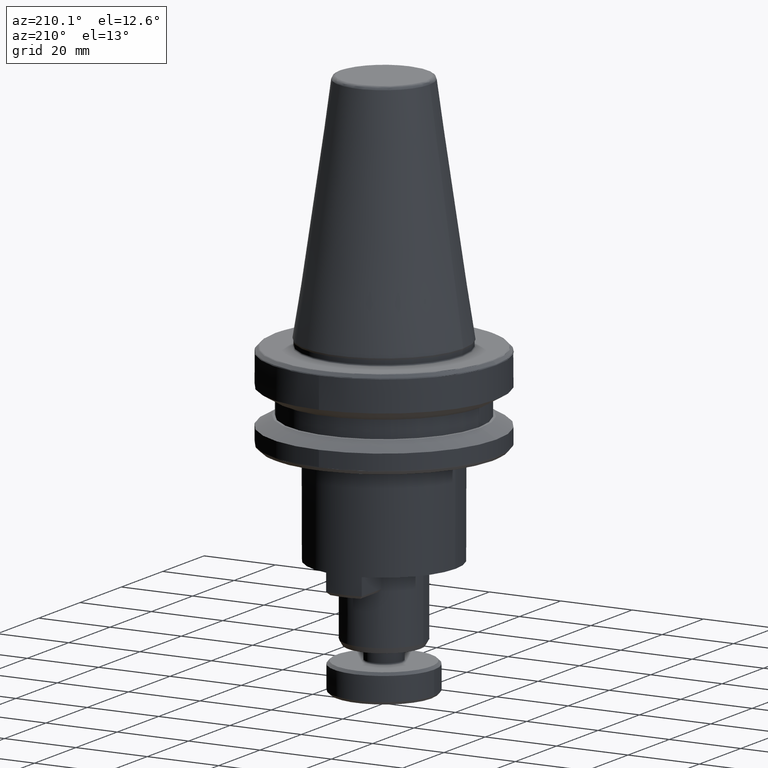
[diagram: clean part render]
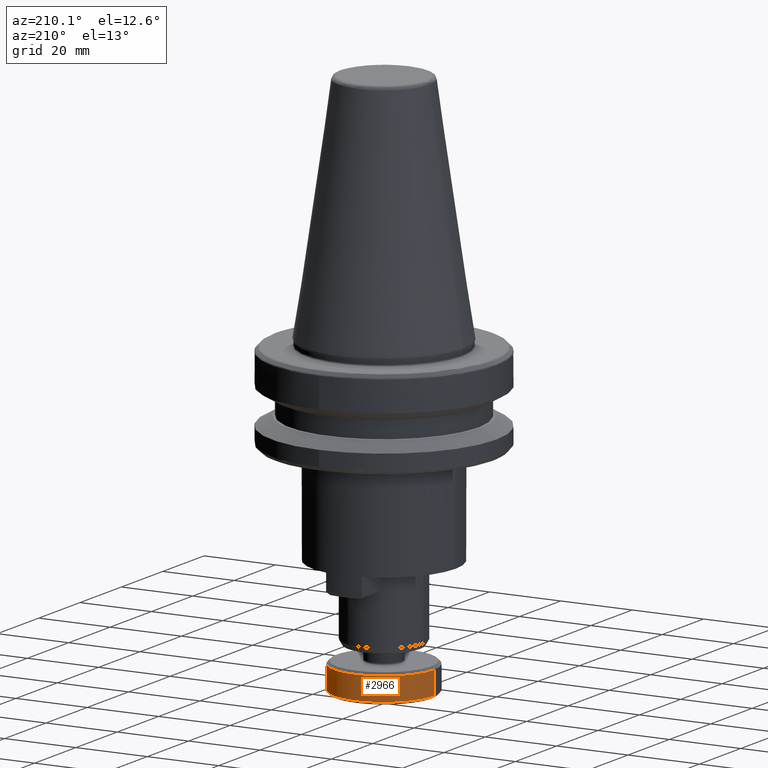
[diagram: same view with one face highlighted and labeled with its STEP entity id]
A machine part, auxiliary view. The second image highlights one B-rep face of the part: STEP entity #2966.
In plain terms, the highlighted cylindrical surface (partial cylindrical patch) has radius 14 mm, axis along (0, 0, 1).
Its self-contained STEP definition (entity closure, byte-faithful):
#139 = AXIS2_PLACEMENT_3D ( 'NONE', #1551, #3184, #1285 ) ;
#295 = EDGE_CURVE ( 'NONE', #393, #1738, #2063, .T. ) ;
#374 = AXIS2_PLACEMENT_3D ( 'NONE', #724, #2640, #2354 ) ;
#388 = ORIENTED_EDGE ( 'NONE', *, *, #2888, .T. ) ;
#393 = VERTEX_POINT ( 'NONE', #1756 ) ;
#452 = ORIENTED_EDGE ( 'NONE', *, *, #3065, .F. ) ;
#657 = CIRCLE ( 'NONE', #139, 14.00000000000000000 ) ;
#724 = CARTESIAN_POINT ( 'NONE',  ( 0.0000000000000000000, 0.0000000000000000000, -100.1942375252151200 ) ) ;
#815 = CARTESIAN_POINT ( 'NONE',  ( -14.00000000000000000, 1.714505518806294600E-015, -100.1942375252151200 ) ) ;
#890 = DIRECTION ( 'NONE',  ( -0.0000000000000000000, -0.0000000000000000000, -1.000000000000000000 ) ) ;
#1079 = VECTOR ( 'NONE', #1614, 1000.000000000000000 ) ;
#1124 = CARTESIAN_POINT ( 'NONE',  ( 0.0000000000000000000, 13.99999999999998600, -100.1942375252151200 ) ) ;
#1170 = CIRCLE ( 'NONE', #1779, 14.00000000000000000 ) ;
#1285 = DIRECTION ( 'NONE',  ( -1.000000000000000000, 0.0000000000000000000, -9.912705577010326500E-016 ) ) ;
#1361 = EDGE_CURVE ( 'NONE', #1738, #2476, #3012, .T. ) ;
#1541 = ORIENTED_EDGE ( 'NONE', *, *, #1361, .T. ) ;
#1551 = CARTESIAN_POINT ( 'NONE',  ( 0.0000000000000000000, 0.0000000000000000000, -100.1942375252151200 ) ) ;
#1560 = CARTESIAN_POINT ( 'NONE',  ( 14.00000000000000000, 0.0000000000000000000, -106.6942375252151400 ) ) ;
#1598 = DIRECTION ( 'NONE',  ( 0.0000000000000000000, 0.0000000000000000000, 1.000000000000000000 ) ) ;
#1599 = AXIS2_PLACEMENT_3D ( 'NONE', #3234, #3202, #2694 ) ;
#1614 = DIRECTION ( 'NONE',  ( 0.0000000000000000000, 0.0000000000000000000, 1.000000000000000000 ) ) ;
#1738 = VERTEX_POINT ( 'NONE', #815 ) ;
#1756 = CARTESIAN_POINT ( 'NONE',  ( -13.99999999999998600, 1.714505518806292900E-015, -106.6942375252151400 ) ) ;
#1779 = AXIS2_PLACEMENT_3D ( 'NONE', #3154, #890, #2770 ) ;
#1926 = VERTEX_POINT ( 'NONE', #2714 ) ;
#2023 = FACE_OUTER_BOUND ( 'NONE', #2336, .T. ) ;
#2063 = LINE ( 'NONE', #2097, #1079 ) ;
#2097 = CARTESIAN_POINT ( 'NONE',  ( -14.00000000000000000, 1.714505518806294600E-015, -106.6942375252151400 ) ) ;
#2274 = VERTEX_POINT ( 'NONE', #3229 ) ;
#2336 = EDGE_LOOP ( 'NONE', ( #452, #2503, #1541, #388, #3114 ) ) ;
#2354 = DIRECTION ( 'NONE',  ( -1.000000000000000000, 0.0000000000000000000, -9.912705577010326500E-016 ) ) ;
#2476 = VERTEX_POINT ( 'NONE', #1124 ) ;
#2503 = ORIENTED_EDGE ( 'NONE', *, *, #295, .T. ) ;
#2548 = CYLINDRICAL_SURFACE ( 'NONE', #1599, 14.00000000000000000 ) ;
#2635 = VECTOR ( 'NONE', #1598, 1000.000000000000000 ) ;
#2640 = DIRECTION ( 'NONE',  ( 0.0000000000000000000, 0.0000000000000000000, -1.000000000000000000 ) ) ;
#2694 = DIRECTION ( 'NONE',  ( 1.000000000000000000, 0.0000000000000000000, 0.0000000000000000000 ) ) ;
#2714 = CARTESIAN_POINT ( 'NONE',  ( 14.00000000000000000, 0.0000000000000000000, -100.1942375252151200 ) ) ;
#2770 = DIRECTION ( 'NONE',  ( 1.000000000000000000, 0.0000000000000000000, 0.0000000000000000000 ) ) ;
#2888 = EDGE_CURVE ( 'NONE', #2476, #1926, #657, .T. ) ;
#2966 = ADVANCED_FACE ( 'NONE', ( #2023 ), #2548, .T. ) ;
#3000 = EDGE_CURVE ( 'NONE', #2274, #1926, #3257, .T. ) ;
#3012 = CIRCLE ( 'NONE', #374, 14.00000000000000000 ) ;
#3065 = EDGE_CURVE ( 'NONE', #393, #2274, #1170, .T. ) ;
#3114 = ORIENTED_EDGE ( 'NONE', *, *, #3000, .F. ) ;
#3154 = CARTESIAN_POINT ( 'NONE',  ( 0.0000000000000000000, 0.0000000000000000000, -106.6942375252151400 ) ) ;
#3184 = DIRECTION ( 'NONE',  ( 0.0000000000000000000, 0.0000000000000000000, -1.000000000000000000 ) ) ;
#3202 = DIRECTION ( 'NONE',  ( 0.0000000000000000000, 0.0000000000000000000, 1.000000000000000000 ) ) ;
#3229 = CARTESIAN_POINT ( 'NONE',  ( 13.99999999999998600, 0.0000000000000000000, -106.6942375252151400 ) ) ;
#3234 = CARTESIAN_POINT ( 'NONE',  ( 0.0000000000000000000, 0.0000000000000000000, -106.6942375252151400 ) ) ;
#3257 = LINE ( 'NONE', #1560, #2635 ) ;